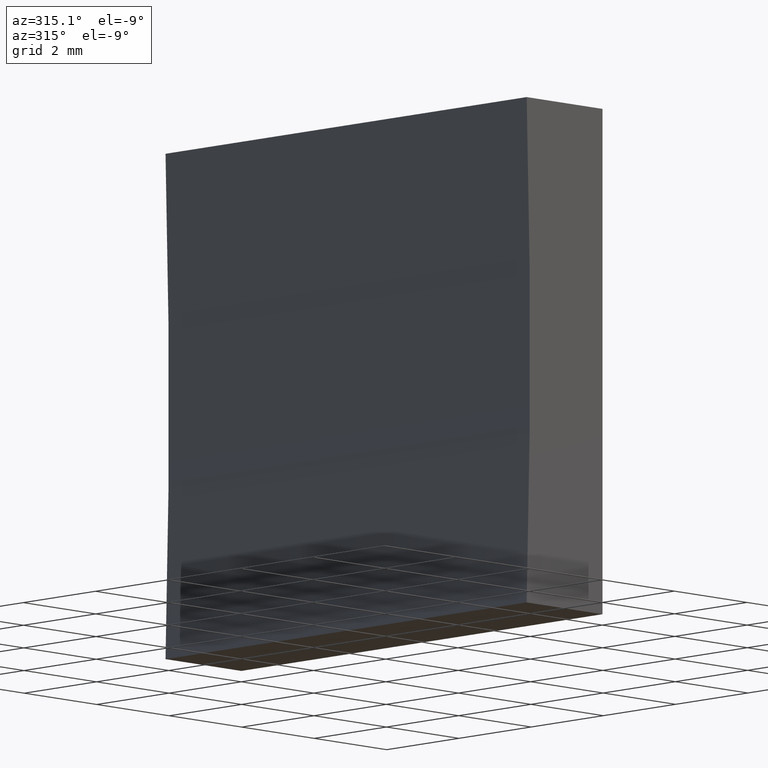
[diagram: clean part render]
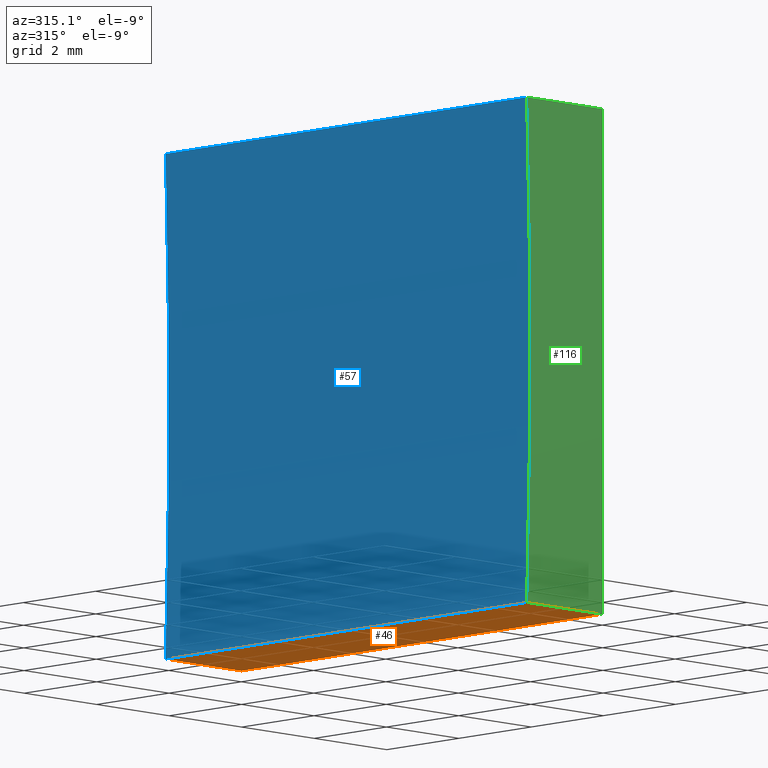
[diagram: same view with three faces highlighted in distinct colors, each labeled with its STEP entity id]
A machine part, auxiliary view with three faces highlighted in distinct colors.
Their STEP definitions:

[orange] entity #46 — the highlighted planar face has unit normal (0, -0, 1).
#4 = DIRECTION ( 'NONE',  ( -0.0000000000000000000, -1.000000000000000000, -0.0000000000000000000 ) ) ;
#13 = DIRECTION ( 'NONE',  ( -1.000000000000000000, 0.0000000000000000000, 8.296515508871473500E-016 ) ) ;
#15 = CARTESIAN_POINT ( 'NONE',  ( 0.0000000000000000000, 10.00000000000000000, 0.0000000000000000000 ) ) ;
#21 = VERTEX_POINT ( 'NONE', #44 ) ;
#23 = VERTEX_POINT ( 'NONE', #157 ) ;
#32 = DIRECTION ( 'NONE',  ( -0.0000000000000000000, -1.000000000000000000, -0.0000000000000000000 ) ) ;
#34 = LINE ( 'NONE', #89, #196 ) ;
#35 = PLANE ( 'NONE',  #140 ) ;
#44 = CARTESIAN_POINT ( 'NONE',  ( -2.090906084755511400, 0.0000000000000000000, 2.602085213965210600E-015 ) ) ;
#45 = CARTESIAN_POINT ( 'NONE',  ( 0.0000000000000000000, 10.00000000000000000, 0.0000000000000000000 ) ) ;
#46 = ADVANCED_FACE ( 'NONE', ( #49 ), #35, .F. ) ;
#49 = FACE_OUTER_BOUND ( 'NONE', #178, .T. ) ;
#55 = VERTEX_POINT ( 'NONE', #45 ) ;
#58 = VECTOR ( 'NONE', #13, 1000.000000000000000 ) ;
#60 = EDGE_CURVE ( 'NONE', #55, #203, #124, .T. ) ;
#61 = VECTOR ( 'NONE', #32, 1000.000000000000000 ) ;
#62 = LINE ( 'NONE', #127, #73 ) ;
#66 = LINE ( 'NONE', #98, #61 ) ;
#73 = VECTOR ( 'NONE', #4, 1000.000000000000000 ) ;
#83 = ORIENTED_EDGE ( 'NONE', *, *, #152, .T. ) ;
#84 = DIRECTION ( 'NONE',  ( 8.296515508871474500E-016, -0.0000000000000000000, 1.000000000000000000 ) ) ;
#89 = CARTESIAN_POINT ( 'NONE',  ( 0.0000000000000000000, 0.0000000000000000000, 0.0000000000000000000 ) ) ;
#92 = EDGE_CURVE ( 'NONE', #203, #21, #62, .T. ) ;
#98 = CARTESIAN_POINT ( 'NONE',  ( 0.0000000000000000000, 10.00000000000000000, 0.0000000000000000000 ) ) ;
#123 = EDGE_CURVE ( 'NONE', #55, #23, #66, .T. ) ;
#124 = LINE ( 'NONE', #126, #58 ) ;
#126 = CARTESIAN_POINT ( 'NONE',  ( 0.0000000000000000000, 10.00000000000000000, 0.0000000000000000000 ) ) ;
#127 = CARTESIAN_POINT ( 'NONE',  ( -2.090906084755511400, 10.00000000000000000, 2.602085213965210600E-015 ) ) ;
#133 = ORIENTED_EDGE ( 'NONE', *, *, #123, .T. ) ;
#140 = AXIS2_PLACEMENT_3D ( 'NONE', #15, #84, #144 ) ;
#144 = DIRECTION ( 'NONE',  ( 1.000000000000000000, 0.0000000000000000000, -8.296515508871474500E-016 ) ) ;
#152 = EDGE_CURVE ( 'NONE', #23, #21, #34, .T. ) ;
#154 = ORIENTED_EDGE ( 'NONE', *, *, #60, .F. ) ;
#155 = ORIENTED_EDGE ( 'NONE', *, *, #92, .F. ) ;
#156 = CARTESIAN_POINT ( 'NONE',  ( -2.090906084755511400, 10.00000000000000000, 2.602085213965210600E-015 ) ) ;
#157 = CARTESIAN_POINT ( 'NONE',  ( 0.0000000000000000000, 0.0000000000000000000, 0.0000000000000000000 ) ) ;
#176 = DIRECTION ( 'NONE',  ( -1.000000000000000000, 0.0000000000000000000, 8.296515508871473500E-016 ) ) ;
#178 = EDGE_LOOP ( 'NONE', ( #83, #155, #154, #133 ) ) ;
#196 = VECTOR ( 'NONE', #176, 1000.000000000000000 ) ;
#203 = VERTEX_POINT ( 'NONE', #156 ) ;

[blue] entity #57 — the highlighted cylindrical surface (partial cylindrical patch) has radius 137.55 mm, axis along (-0, -1, -0).
#2 = CARTESIAN_POINT ( 'NONE',  ( -2.090906084755539000, 10.00000000000000000, 9.999999999999998200 ) ) ;
#4 = DIRECTION ( 'NONE',  ( -0.0000000000000000000, -1.000000000000000000, -0.0000000000000000000 ) ) ;
#5 = AXIS2_PLACEMENT_3D ( 'NONE', #28, #153, #75 ) ;
#9 = ORIENTED_EDGE ( 'NONE', *, *, #92, .T. ) ;
#21 = VERTEX_POINT ( 'NONE', #44 ) ;
#22 = DIRECTION ( 'NONE',  ( 0.0000000000000000000, 0.0000000000000000000, 1.000000000000000000 ) ) ;
#28 = CARTESIAN_POINT ( 'NONE',  ( -139.5500000000000100, 10.00000000000000000, 5.000000000000016000 ) ) ;
#30 = DIRECTION ( 'NONE',  ( -0.0000000000000000000, -1.000000000000000000, -0.0000000000000000000 ) ) ;
#31 = AXIS2_PLACEMENT_3D ( 'NONE', #113, #30, #22 ) ;
#36 = ORIENTED_EDGE ( 'NONE', *, *, #78, .T. ) ;
#44 = CARTESIAN_POINT ( 'NONE',  ( -2.090906084755511400, 0.0000000000000000000, 2.602085213965210600E-015 ) ) ;
#57 = ADVANCED_FACE ( 'NONE', ( #131 ), #80, .F. ) ;
#59 = VERTEX_POINT ( 'NONE', #175 ) ;
#62 = LINE ( 'NONE', #127, #73 ) ;
#65 = DIRECTION ( 'NONE',  ( -0.0000000000000000000, -1.000000000000000000, -0.0000000000000000000 ) ) ;
#69 = LINE ( 'NONE', #167, #181 ) ;
#73 = VECTOR ( 'NONE', #4, 1000.000000000000000 ) ;
#75 = DIRECTION ( 'NONE',  ( 0.0000000000000000000, 0.0000000000000000000, -1.000000000000000000 ) ) ;
#78 = EDGE_CURVE ( 'NONE', #21, #59, #100, .T. ) ;
#80 = CYLINDRICAL_SURFACE ( 'NONE', #5, 137.5500000000000100 ) ;
#88 = AXIS2_PLACEMENT_3D ( 'NONE', #199, #115, #182 ) ;
#92 = EDGE_CURVE ( 'NONE', #203, #21, #62, .T. ) ;
#93 = ORIENTED_EDGE ( 'NONE', *, *, #117, .F. ) ;
#99 = CIRCLE ( 'NONE', #88, 137.5500000000000100 ) ;
#100 = CIRCLE ( 'NONE', #31, 137.5500000000000100 ) ;
#113 = CARTESIAN_POINT ( 'NONE',  ( -139.5500000000000100, 0.0000000000000000000, 5.000000000000016000 ) ) ;
#115 = DIRECTION ( 'NONE',  ( -0.0000000000000000000, -1.000000000000000000, -0.0000000000000000000 ) ) ;
#117 = EDGE_CURVE ( 'NONE', #203, #201, #99, .T. ) ;
#127 = CARTESIAN_POINT ( 'NONE',  ( -2.090906084755511400, 10.00000000000000000, 2.602085213965210600E-015 ) ) ;
#131 = FACE_OUTER_BOUND ( 'NONE', #187, .T. ) ;
#153 = DIRECTION ( 'NONE',  ( -0.0000000000000000000, -1.000000000000000000, -0.0000000000000000000 ) ) ;
#156 = CARTESIAN_POINT ( 'NONE',  ( -2.090906084755511400, 10.00000000000000000, 2.602085213965210600E-015 ) ) ;
#160 = ORIENTED_EDGE ( 'NONE', *, *, #190, .F. ) ;
#167 = CARTESIAN_POINT ( 'NONE',  ( -2.090906084755539000, 10.00000000000000000, 9.999999999999998200 ) ) ;
#175 = CARTESIAN_POINT ( 'NONE',  ( -2.090906084755539000, 0.0000000000000000000, 9.999999999999998200 ) ) ;
#181 = VECTOR ( 'NONE', #65, 1000.000000000000000 ) ;
#182 = DIRECTION ( 'NONE',  ( 0.0000000000000000000, 0.0000000000000000000, 1.000000000000000000 ) ) ;
#187 = EDGE_LOOP ( 'NONE', ( #36, #160, #93, #9 ) ) ;
#190 = EDGE_CURVE ( 'NONE', #201, #59, #69, .T. ) ;
#199 = CARTESIAN_POINT ( 'NONE',  ( -139.5500000000000100, 10.00000000000000000, 5.000000000000016000 ) ) ;
#201 = VERTEX_POINT ( 'NONE', #2 ) ;
#203 = VERTEX_POINT ( 'NONE', #156 ) ;

[green] entity #116 — the highlighted planar face has unit normal (0, 1, 0).
#7 = VECTOR ( 'NONE', #141, 1000.000000000000000 ) ;
#11 = DIRECTION ( 'NONE',  ( 0.0000000000000000000, 1.000000000000000000, 0.0000000000000000000 ) ) ;
#21 = VERTEX_POINT ( 'NONE', #44 ) ;
#22 = DIRECTION ( 'NONE',  ( 0.0000000000000000000, 0.0000000000000000000, 1.000000000000000000 ) ) ;
#23 = VERTEX_POINT ( 'NONE', #157 ) ;
#29 = EDGE_LOOP ( 'NONE', ( #104, #102, #86, #159 ) ) ;
#30 = DIRECTION ( 'NONE',  ( -0.0000000000000000000, -1.000000000000000000, -0.0000000000000000000 ) ) ;
#31 = AXIS2_PLACEMENT_3D ( 'NONE', #113, #30, #22 ) ;
#34 = LINE ( 'NONE', #89, #196 ) ;
#42 = CARTESIAN_POINT ( 'NONE',  ( 6.123233995736766300E-016, 0.0000000000000000000, 10.00000000000000000 ) ) ;
#44 = CARTESIAN_POINT ( 'NONE',  ( -2.090906084755511400, 0.0000000000000000000, 2.602085213965210600E-015 ) ) ;
#54 = PLANE ( 'NONE',  #164 ) ;
#59 = VERTEX_POINT ( 'NONE', #175 ) ;
#64 = CARTESIAN_POINT ( 'NONE',  ( 6.123233995736766300E-016, 0.0000000000000000000, 10.00000000000000000 ) ) ;
#77 = CARTESIAN_POINT ( 'NONE',  ( 0.0000000000000000000, 0.0000000000000000000, 0.0000000000000000000 ) ) ;
#78 = EDGE_CURVE ( 'NONE', #21, #59, #100, .T. ) ;
#86 = ORIENTED_EDGE ( 'NONE', *, *, #146, .F. ) ;
#89 = CARTESIAN_POINT ( 'NONE',  ( 0.0000000000000000000, 0.0000000000000000000, 0.0000000000000000000 ) ) ;
#100 = CIRCLE ( 'NONE', #31, 137.5500000000000100 ) ;
#102 = ORIENTED_EDGE ( 'NONE', *, *, #174, .F. ) ;
#104 = ORIENTED_EDGE ( 'NONE', *, *, #152, .F. ) ;
#110 = LINE ( 'NONE', #77, #7 ) ;
#113 = CARTESIAN_POINT ( 'NONE',  ( -139.5500000000000100, 0.0000000000000000000, 5.000000000000016000 ) ) ;
#116 = ADVANCED_FACE ( 'NONE', ( #204 ), #54, .F. ) ;
#120 = CARTESIAN_POINT ( 'NONE',  ( -139.5500000000000100, 0.0000000000000000000, 5.000000000000016000 ) ) ;
#121 = VECTOR ( 'NONE', #158, 1000.000000000000000 ) ;
#141 = DIRECTION ( 'NONE',  ( -6.123233995736766000E-017, -0.0000000000000000000, -1.000000000000000000 ) ) ;
#146 = EDGE_CURVE ( 'NONE', #59, #184, #147, .T. ) ;
#147 = LINE ( 'NONE', #42, #121 ) ;
#152 = EDGE_CURVE ( 'NONE', #23, #21, #34, .T. ) ;
#157 = CARTESIAN_POINT ( 'NONE',  ( 0.0000000000000000000, 0.0000000000000000000, 0.0000000000000000000 ) ) ;
#158 = DIRECTION ( 'NONE',  ( 1.000000000000000000, -0.0000000000000000000, 8.296515508871476500E-016 ) ) ;
#159 = ORIENTED_EDGE ( 'NONE', *, *, #78, .F. ) ;
#164 = AXIS2_PLACEMENT_3D ( 'NONE', #120, #11, #198 ) ;
#174 = EDGE_CURVE ( 'NONE', #184, #23, #110, .T. ) ;
#175 = CARTESIAN_POINT ( 'NONE',  ( -2.090906084755539000, 0.0000000000000000000, 9.999999999999998200 ) ) ;
#176 = DIRECTION ( 'NONE',  ( -1.000000000000000000, 0.0000000000000000000, 8.296515508871473500E-016 ) ) ;
#184 = VERTEX_POINT ( 'NONE', #64 ) ;
#196 = VECTOR ( 'NONE', #176, 1000.000000000000000 ) ;
#198 = DIRECTION ( 'NONE',  ( 0.0000000000000000000, -0.0000000000000000000, 1.000000000000000000 ) ) ;
#204 = FACE_OUTER_BOUND ( 'NONE', #29, .T. ) ;